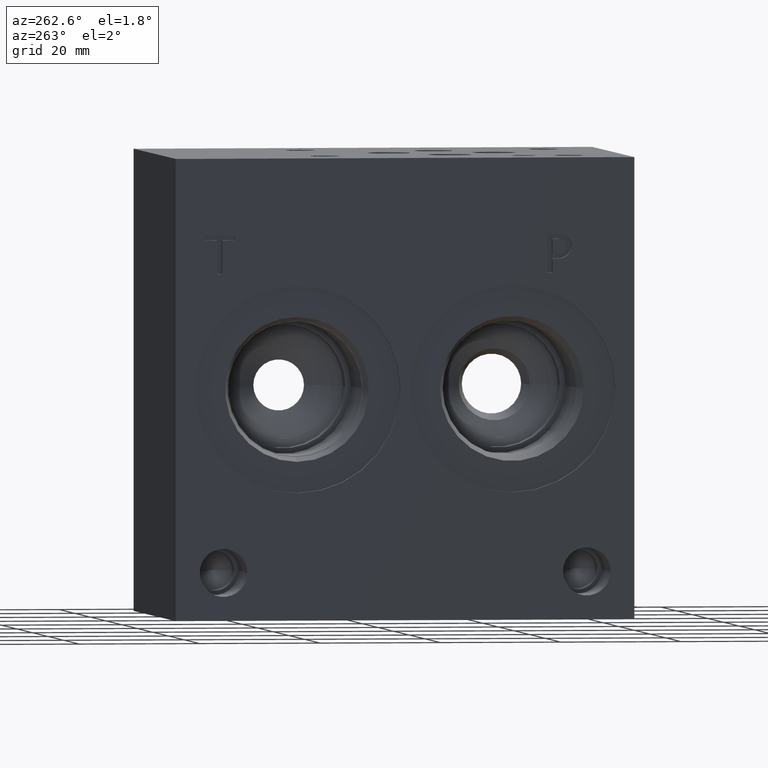
[diagram: clean part render]
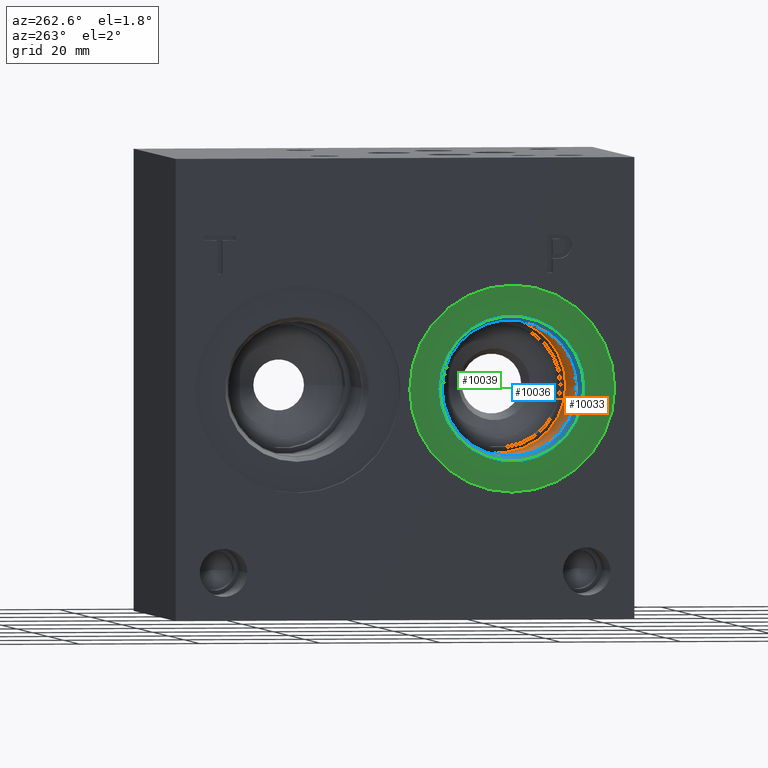
[diagram: same view with three faces highlighted in distinct colors, each labeled with its STEP entity id]
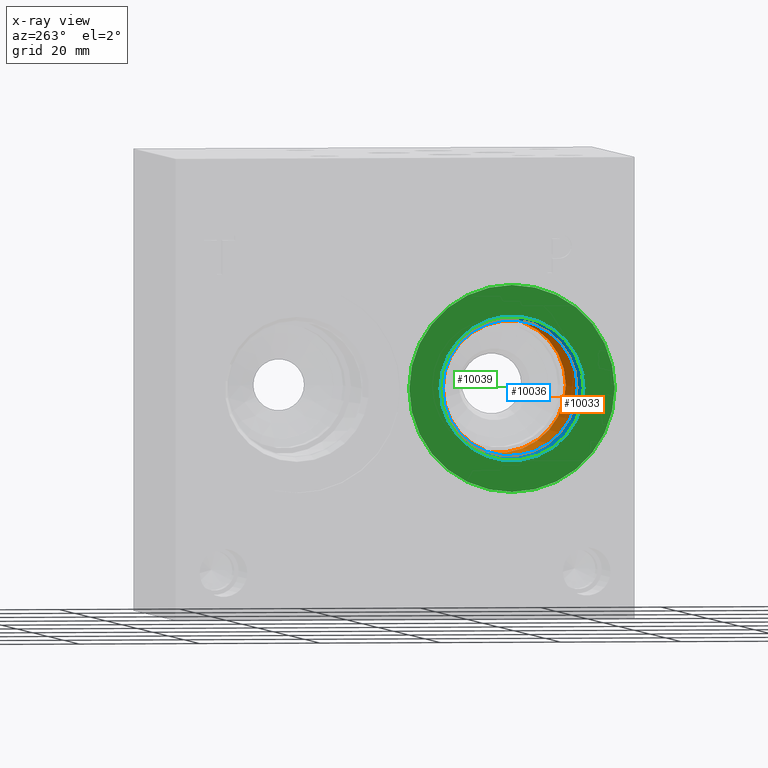
[diagram: x-ray of the same camera — body ghosted, the three highlighted faces saturated]
A machine part, auxiliary view with three faces highlighted in distinct colors.
The next image is the same camera in x-ray (body ghosted, the three faces saturated) — at least one of them is partly hidden behind the body in this view.
Their STEP definitions:

[orange] entity #10033 — the highlighted cylindrical surface (bore or boss wall) has radius 11.1125 mm, axis along (-1, 0, 0).
#197=CIRCLE('',#10583,11.1125);
#198=CIRCLE('',#10584,11.1125);
#200=CIRCLE('',#10587,11.1125);
#286=CYLINDRICAL_SURFACE('',#10586,11.1125);
#1227=FACE_OUTER_BOUND('',#1802,.T.);
#1802=EDGE_LOOP('',(#8642,#8643,#8644,#8645,#8646));
#2775=LINE('',#17109,#3721);
#3721=VECTOR('',#12589,11.1125);
#4642=VERTEX_POINT('',#17100);
#4643=VERTEX_POINT('',#17101);
#4645=VERTEX_POINT('',#17107);
#6005=EDGE_CURVE('',#4642,#4643,#197,.T.);
#6006=EDGE_CURVE('',#4643,#4642,#198,.T.);
#6008=EDGE_CURVE('',#4645,#4645,#200,.T.);
#6009=EDGE_CURVE('',#4645,#4643,#2775,.T.);
#8642=ORIENTED_EDGE('',*,*,#6008,.F.);
#8643=ORIENTED_EDGE('',*,*,#6009,.T.);
#8644=ORIENTED_EDGE('',*,*,#6005,.F.);
#8645=ORIENTED_EDGE('',*,*,#6006,.F.);
#8646=ORIENTED_EDGE('',*,*,#6009,.F.);
#10033=ADVANCED_FACE('',(#1227),#286,.F.);
#10583=AXIS2_PLACEMENT_3D('',#17102,#12579,#12580);
#10584=AXIS2_PLACEMENT_3D('',#17103,#12581,#12582);
#10586=AXIS2_PLACEMENT_3D('',#17106,#12585,#12586);
#10587=AXIS2_PLACEMENT_3D('',#17108,#12587,#12588);
#12579=DIRECTION('center_axis',(-1.,0.,0.));
#12580=DIRECTION('ref_axis',(0.,1.,0.));
#12581=DIRECTION('center_axis',(-1.,0.,0.));
#12582=DIRECTION('ref_axis',(0.,1.,0.));
#12585=DIRECTION('center_axis',(-1.,0.,0.));
#12586=DIRECTION('ref_axis',(0.,1.,0.));
#12587=DIRECTION('center_axis',(1.,0.,0.));
#12588=DIRECTION('ref_axis',(0.,1.,0.));
#12589=DIRECTION('',(1.,0.,0.));
#17100=CARTESIAN_POINT('',(17.4498,31.3563,38.1));
#17101=CARTESIAN_POINT('',(17.4498,9.1313,38.1));
#17102=CARTESIAN_POINT('Origin',(17.4498,20.2438,38.1));
#17103=CARTESIAN_POINT('Origin',(17.4498,20.2438,38.1));
#17106=CARTESIAN_POINT('Origin',(8.7249,20.2438,38.1));
#17107=CARTESIAN_POINT('',(3.91738498690423,9.1313,38.1));
#17108=CARTESIAN_POINT('Origin',(3.91738498690423,20.2438,38.1));
#17109=CARTESIAN_POINT('',(8.7249,9.1313,38.1));

[blue] entity #10036 — the highlighted conical surface has half-angle 15 deg.
#42=CONICAL_SURFACE('',#10593,5.97535,0.261799387799149);
#201=CIRCLE('',#10590,11.2776);
#204=CIRCLE('',#10594,11.9507);
#205=CIRCLE('',#10595,11.9507);
#1230=FACE_OUTER_BOUND('',#1805,.T.);
#1805=EDGE_LOOP('',(#8657,#8658,#8659,#8660,#8661));
#2778=LINE('',#17124,#3724);
#3724=VECTOR('',#12606,5.97535);
#4646=VERTEX_POINT('',#17113);
#4649=VERTEX_POINT('',#17121);
#4650=VERTEX_POINT('',#17122);
#6011=EDGE_CURVE('',#4646,#4646,#201,.T.);
#6015=EDGE_CURVE('',#4649,#4650,#204,.T.);
#6016=EDGE_CURVE('',#4650,#4646,#2778,.T.);
#6017=EDGE_CURVE('',#4650,#4649,#205,.T.);
#8657=ORIENTED_EDGE('',*,*,#6015,.T.);
#8658=ORIENTED_EDGE('',*,*,#6016,.T.);
#8659=ORIENTED_EDGE('',*,*,#6011,.T.);
#8660=ORIENTED_EDGE('',*,*,#6016,.F.);
#8661=ORIENTED_EDGE('',*,*,#6017,.T.);
#10036=ADVANCED_FACE('',(#1230),#42,.F.);
#10590=AXIS2_PLACEMENT_3D('',#17114,#12595,#12596);
#10593=AXIS2_PLACEMENT_3D('',#17120,#12602,#12603);
#10594=AXIS2_PLACEMENT_3D('',#17123,#12604,#12605);
#10595=AXIS2_PLACEMENT_3D('',#17125,#12607,#12608);
#12595=DIRECTION('center_axis',(1.,0.,0.));
#12596=DIRECTION('ref_axis',(0.,1.,0.));
#12602=DIRECTION('center_axis',(-1.,0.,0.));
#12603=DIRECTION('ref_axis',(0.,1.,0.));
#12604=DIRECTION('center_axis',(-1.,0.,0.));
#12605=DIRECTION('ref_axis',(0.,1.,0.));
#12606=DIRECTION('',(0.965925826289068,0.258819045102521,-3.16961915143176E-17));
#12607=DIRECTION('center_axis',(-1.,0.,0.));
#12608=DIRECTION('ref_axis',(0.,1.,0.));
#17113=CARTESIAN_POINT('',(3.30122339857461,8.9662,38.1));
#17114=CARTESIAN_POINT('Origin',(3.30122339857461,20.2438,38.1));
#17120=CARTESIAN_POINT('Origin',(23.0894897930067,20.2438,38.1));
#17121=CARTESIAN_POINT('',(0.78918,32.1945,38.1));
#17122=CARTESIAN_POINT('',(0.789179999999998,8.2931,38.1));
#17123=CARTESIAN_POINT('Origin',(0.78918,20.2438,38.1));
#17124=CARTESIAN_POINT('',(23.0894897930067,14.26845,38.1));
#17125=CARTESIAN_POINT('Origin',(0.78918,20.2438,38.1));

[green] entity #10039 — the highlighted planar face has unit normal (-1, 0, 0).
#207=CIRCLE('',#10600,17.0688);
#208=CIRCLE('',#10601,17.0688);
#209=CIRCLE('',#10602,11.9507);
#362=FACE_BOUND('',#1809,.T.);
#1233=FACE_OUTER_BOUND('',#1808,.T.);
#1808=EDGE_LOOP('',(#8671,#8672));
#1809=EDGE_LOOP('',(#8673));
#4652=VERTEX_POINT('',#17133);
#4653=VERTEX_POINT('',#17134);
#4654=VERTEX_POINT('',#17137);
#6021=EDGE_CURVE('',#4652,#4653,#207,.T.);
#6022=EDGE_CURVE('',#4653,#4652,#208,.T.);
#6023=EDGE_CURVE('',#4654,#4654,#209,.T.);
#8671=ORIENTED_EDGE('',*,*,#6021,.T.);
#8672=ORIENTED_EDGE('',*,*,#6022,.T.);
#8673=ORIENTED_EDGE('',*,*,#6023,.F.);
#9160=PLANE('',#10599);
#10039=ADVANCED_FACE('',(#1233,#362),#9160,.T.);
#10599=AXIS2_PLACEMENT_3D('',#17132,#12617,#12618);
#10600=AXIS2_PLACEMENT_3D('',#17135,#12619,#12620);
#10601=AXIS2_PLACEMENT_3D('',#17136,#12621,#12622);
#10602=AXIS2_PLACEMENT_3D('',#17138,#12623,#12624);
#12617=DIRECTION('center_axis',(-1.,0.,0.));
#12618=DIRECTION('ref_axis',(0.,1.,0.));
#12619=DIRECTION('center_axis',(-1.,0.,0.));
#12620=DIRECTION('ref_axis',(0.,1.,0.));
#12621=DIRECTION('center_axis',(-1.,0.,0.));
#12622=DIRECTION('ref_axis',(0.,1.,0.));
#12623=DIRECTION('center_axis',(-1.,0.,0.));
#12624=DIRECTION('ref_axis',(0.,1.,0.));
#17132=CARTESIAN_POINT('Origin',(0.7874,20.2438,38.1));
#17133=CARTESIAN_POINT('',(0.7874,37.3126,38.1));
#17134=CARTESIAN_POINT('',(0.7874,3.175,38.1));
#17135=CARTESIAN_POINT('Origin',(0.7874,20.2438,38.1));
#17136=CARTESIAN_POINT('Origin',(0.7874,20.2438,38.1));
#17137=CARTESIAN_POINT('',(0.7874,8.2931,38.1));
#17138=CARTESIAN_POINT('Origin',(0.7874,20.2438,38.1));